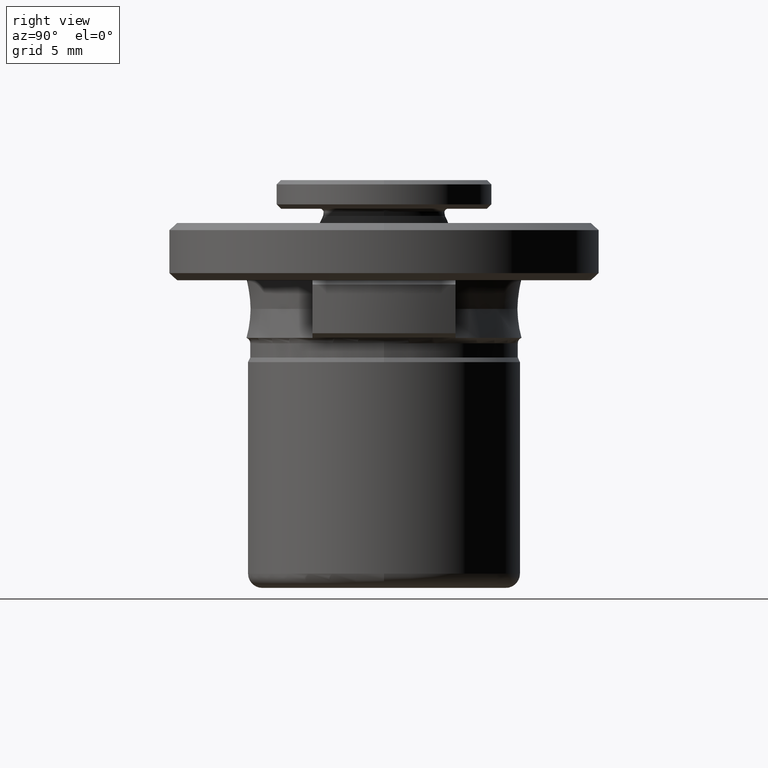
[diagram: clean part render]
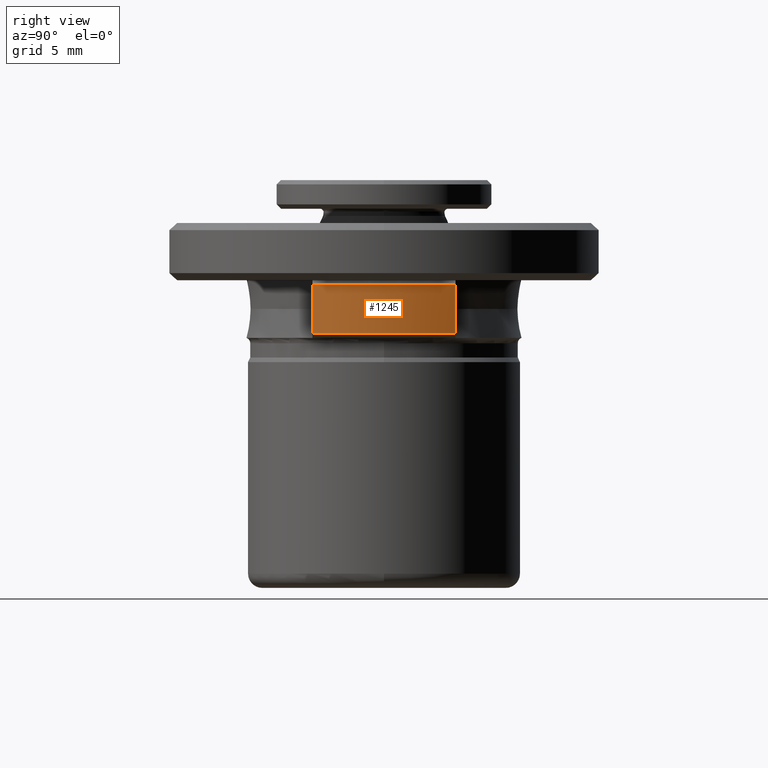
[diagram: same view with one face highlighted and labeled with its STEP entity id]
A machine part, right view. The second image highlights one B-rep face of the part: STEP entity #1245.
In plain terms, the highlighted cylindrical surface (partial cylindrical patch) has radius 12.4 mm, axis along (0, 0, 1).
Its self-contained STEP definition (entity closure, byte-faithful):
#9 = AXIS2_PLACEMENT_3D ( 'NONE', #290, #633, #789 ) ;
#47 = CARTESIAN_POINT ( 'NONE',  ( 0.0000000000000000000, 0.0000000000000000000, 5.049999999999998900 ) ) ;
#48 = VERTEX_POINT ( 'NONE', #535 ) ;
#49 = EDGE_CURVE ( 'NONE', #1467, #48, #2055, .T. ) ;
#149 = DIRECTION ( 'NONE',  ( 1.000000000000000000, 0.0000000000000000000, 1.398970545142586000E-016 ) ) ;
#290 = CARTESIAN_POINT ( 'NONE',  ( 0.0000000000000000000, 0.0000000000000000000, 5.049999999999999800 ) ) ;
#291 = EDGE_CURVE ( 'NONE', #48, #1815, #716, .T. ) ;
#353 = CARTESIAN_POINT ( 'NONE',  ( 11.34724636202748200, -5.000000000000000000, 8.449999999976419900 ) ) ;
#417 = DIRECTION ( 'NONE',  ( -0.0000000000000000000, -0.0000000000000000000, -1.000000000000000000 ) ) ;
#535 = CARTESIAN_POINT ( 'NONE',  ( 12.40000000000000200, 0.0000000000000000000, 5.049999999999998900 ) ) ;
#633 = DIRECTION ( 'NONE',  ( 0.0000000000000000000, 3.497426362856465100E-017, 1.000000000000000000 ) ) ;
#657 = ORIENTED_EDGE ( 'NONE', *, *, #291, .F. ) ;
#716 = CIRCLE ( 'NONE', #1079, 12.40000000000000200 ) ;
#754 = DIRECTION ( 'NONE',  ( 0.0000000000000000000, 0.0000000000000000000, -1.000000000000000000 ) ) ;
#786 = ORIENTED_EDGE ( 'NONE', *, *, #1446, .T. ) ;
#789 = DIRECTION ( 'NONE',  ( 0.0000000000000000000, -1.000000000000000000, 0.0000000000000000000 ) ) ;
#956 = DIRECTION ( 'NONE',  ( -0.0000000000000000000, -0.0000000000000000000, 1.000000000000000000 ) ) ;
#1079 = AXIS2_PLACEMENT_3D ( 'NONE', #1386, #417, #1565 ) ;
#1124 = LINE ( 'NONE', #1889, #1934 ) ;
#1127 = DIRECTION ( 'NONE',  ( 0.0000000000000000000, 0.0000000000000000000, 1.000000000000000000 ) ) ;
#1129 = EDGE_LOOP ( 'NONE', ( #1736, #786, #1745, #1353, #657 ) ) ;
#1131 = CARTESIAN_POINT ( 'NONE',  ( 11.34724636200171400, 5.000000000000000000, 5.049999999998430400 ) ) ;
#1189 = DIRECTION ( 'NONE',  ( -0.0000000000000000000, -0.0000000000000000000, -1.000000000000000000 ) ) ;
#1236 = CIRCLE ( 'NONE', #1309, 12.40000000000000200 ) ;
#1245 = ADVANCED_FACE ( 'NONE', ( #1479 ), #1429, .T. ) ;
#1287 = CARTESIAN_POINT ( 'NONE',  ( 11.34724636200000000, 5.000000000000000000, 6.725040224999999900 ) ) ;
#1309 = AXIS2_PLACEMENT_3D ( 'NONE', #2088, #1127, #149 ) ;
#1353 = ORIENTED_EDGE ( 'NONE', *, *, #1828, .T. ) ;
#1386 = CARTESIAN_POINT ( 'NONE',  ( 0.0000000000000000000, 0.0000000000000000000, 5.049999999999998900 ) ) ;
#1388 = CARTESIAN_POINT ( 'NONE',  ( 11.34724636193648300, -5.000000000000000000, 5.049999999940308000 ) ) ;
#1429 = CYLINDRICAL_SURFACE ( 'NONE', #9, 12.40000000000000200 ) ;
#1437 = EDGE_CURVE ( 'NONE', #1765, #1438, #1236, .T. ) ;
#1438 = VERTEX_POINT ( 'NONE', #1931 ) ;
#1446 = EDGE_CURVE ( 'NONE', #1467, #1438, #1665, .T. ) ;
#1458 = AXIS2_PLACEMENT_3D ( 'NONE', #47, #1189, #1513 ) ;
#1467 = VERTEX_POINT ( 'NONE', #1131 ) ;
#1479 = FACE_OUTER_BOUND ( 'NONE', #1129, .T. ) ;
#1513 = DIRECTION ( 'NONE',  ( 1.000000000000000000, 0.0000000000000000000, 6.994852725712930200E-017 ) ) ;
#1565 = DIRECTION ( 'NONE',  ( 1.000000000000000000, 0.0000000000000000000, 6.994852725712930200E-017 ) ) ;
#1665 = LINE ( 'NONE', #1287, #1859 ) ;
#1736 = ORIENTED_EDGE ( 'NONE', *, *, #49, .F. ) ;
#1745 = ORIENTED_EDGE ( 'NONE', *, *, #1437, .F. ) ;
#1765 = VERTEX_POINT ( 'NONE', #353 ) ;
#1815 = VERTEX_POINT ( 'NONE', #1388 ) ;
#1828 = EDGE_CURVE ( 'NONE', #1765, #1815, #1124, .T. ) ;
#1859 = VECTOR ( 'NONE', #956, 1000.000000000000000 ) ;
#1889 = CARTESIAN_POINT ( 'NONE',  ( 11.34724636200000000, -5.000000000000000000, 6.725040224999999900 ) ) ;
#1931 = CARTESIAN_POINT ( 'NONE',  ( 11.34724636200171400, 5.000000000000000000, 8.450000000001548300 ) ) ;
#1934 = VECTOR ( 'NONE', #754, 1000.000000000000000 ) ;
#2055 = CIRCLE ( 'NONE', #1458, 12.40000000000000200 ) ;
#2088 = CARTESIAN_POINT ( 'NONE',  ( 0.0000000000000000000, 0.0000000000000000000, 8.449999999999999300 ) ) ;